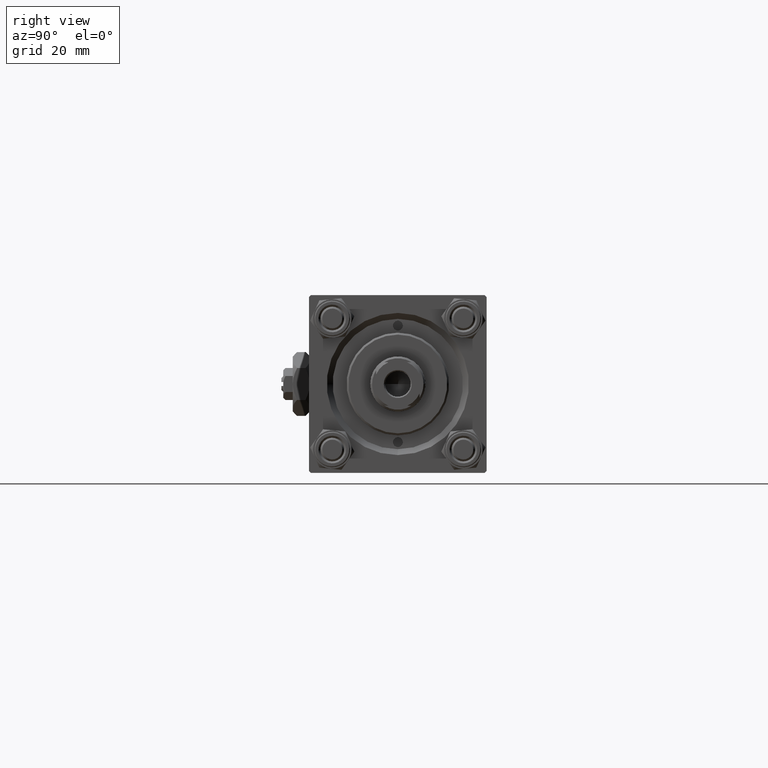
[diagram: clean part render]
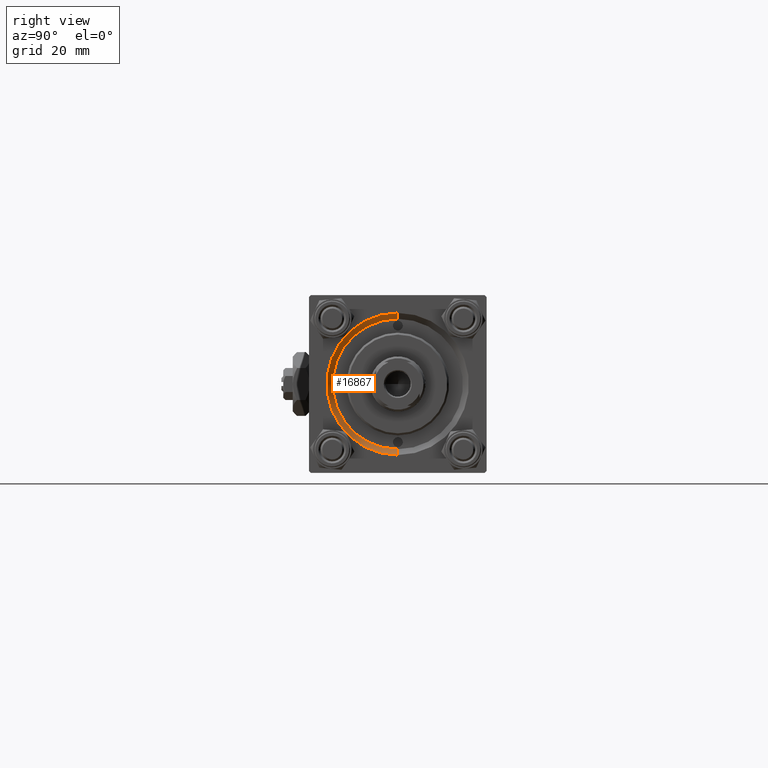
[diagram: same view with one face highlighted and labeled with its STEP entity id]
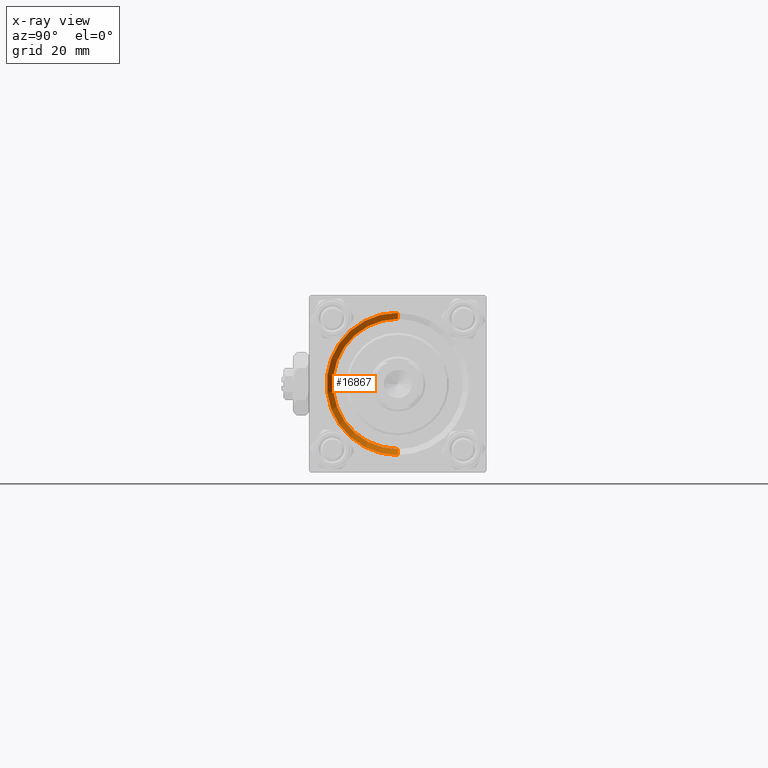
[diagram: x-ray of the same camera — body ghosted, the highlighted face saturated]
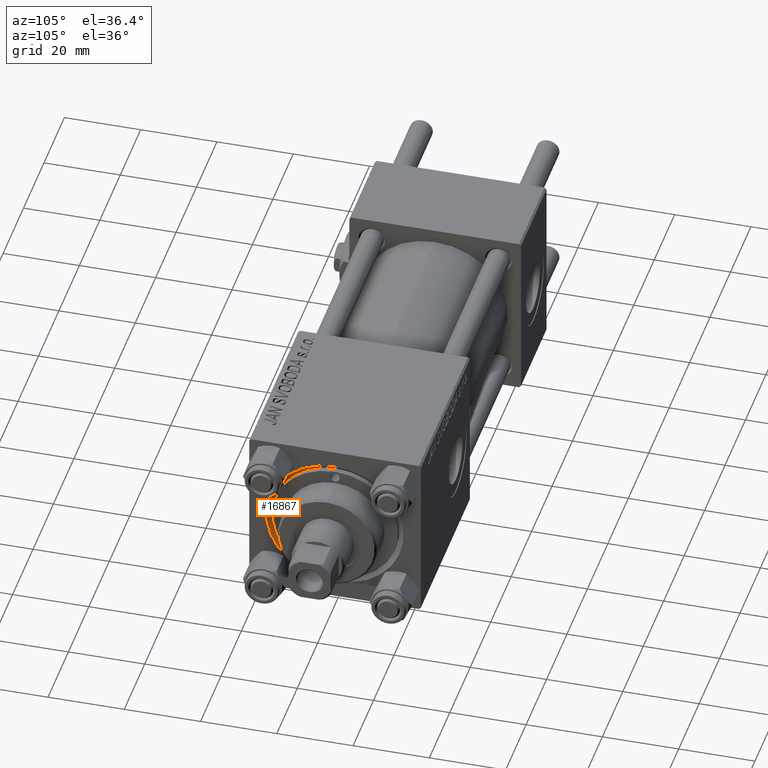
[diagram: same view with one face highlighted and labeled with its STEP entity id]
A machine part, right view. The second image highlights one B-rep face of the part: STEP entity #16867.
The next image is the same camera in x-ray: the body ghosted, the highlighted face saturated — about 0% of this face is hidden behind the body in this view.
A second angle (auxiliary view) of the same face is appended — the face is thin or edge-on in the first view.
In plain terms, the highlighted conical surface has half-angle 45 deg.
Its self-contained STEP definition (entity closure, byte-faithful):
#478 = CARTESIAN_POINT ( 'NONE',  ( 121.5000000000000142, 0.000000000000000000, -16.50000000000000000 ) ) ;
#1089 = CARTESIAN_POINT ( 'NONE',  ( 123.0000000000000142, 0.000000000000000000, -18.00000000000000355 ) ) ;
#1115 = AXIS2_PLACEMENT_3D ( 'NONE', #19293, #35241, #50910 ) ;
#3621 = CONICAL_SURFACE ( 'NONE', #1115, 16.50000000000000000, 0.7853981633974482790 ) ;
#3623 = DIRECTION ( 'NONE',  ( 0.7071067811865474617, 0.000000000000000000, -0.7071067811865474617 ) ) ;
#3891 = LINE ( 'NONE', #478, #18771 ) ;
#4618 = CIRCLE ( 'NONE', #50471, 18.00000000000000355 ) ;
#5264 = EDGE_LOOP ( 'NONE', ( #43652, #47698, #39739, #34198 ) ) ;
#5889 = DIRECTION ( 'NONE',  ( 1.000000000000000000, 0.000000000000000000, 0.000000000000000000 ) ) ;
#6685 = DIRECTION ( 'NONE',  ( 0.7071067811865474617, 8.659560562354932858E-17, 0.7071067811865474617 ) ) ;
#7616 = EDGE_CURVE ( 'NONE', #19810, #46005, #14512, .T. ) ;
#7908 = VERTEX_POINT ( 'NONE', #1089 ) ;
#9837 = CARTESIAN_POINT ( 'NONE',  ( 121.5000000000000142, 0.000000000000000000, -16.50000000000000000 ) ) ;
#14512 = LINE ( 'NONE', #30474, #20983 ) ;
#16867 = ADVANCED_FACE ( 'NONE', ( #42563 ), #3621, .F. ) ;
#17910 = CIRCLE ( 'NONE', #21231, 16.50000000000000000 ) ;
#18771 = VECTOR ( 'NONE', #3623, 1000.000000000000114 ) ;
#19293 = CARTESIAN_POINT ( 'NONE',  ( 121.5000000000000142, 0.000000000000000000, 0.000000000000000000 ) ) ;
#19426 = EDGE_CURVE ( 'NONE', #19810, #26985, #17910, .T. ) ;
#19810 = VERTEX_POINT ( 'NONE', #30021 ) ;
#20983 = VECTOR ( 'NONE', #6685, 1000.000000000000114 ) ;
#21231 = AXIS2_PLACEMENT_3D ( 'NONE', #29431, #5889, #45345 ) ;
#23297 = CARTESIAN_POINT ( 'NONE',  ( 123.0000000000000142, 2.204364238465235822E-15, 18.00000000000000355 ) ) ;
#26985 = VERTEX_POINT ( 'NONE', #9837 ) ;
#27148 = CARTESIAN_POINT ( 'NONE',  ( 123.0000000000000142, 0.000000000000000000, 0.000000000000000000 ) ) ;
#29431 = CARTESIAN_POINT ( 'NONE',  ( 121.5000000000000142, 0.000000000000000000, 0.000000000000000000 ) ) ;
#30021 = CARTESIAN_POINT ( 'NONE',  ( 121.5000000000000142, 2.020667218593133100E-15, 16.50000000000000000 ) ) ;
#30474 = CARTESIAN_POINT ( 'NONE',  ( 121.5000000000000142, 2.020667218593133100E-15, 16.50000000000000000 ) ) ;
#34198 = ORIENTED_EDGE ( 'NONE', *, *, #34402, .F. ) ;
#34242 = EDGE_CURVE ( 'NONE', #7908, #46005, #4618, .T. ) ;
#34402 = EDGE_CURVE ( 'NONE', #26985, #7908, #3891, .T. ) ;
#35241 = DIRECTION ( 'NONE',  ( 1.000000000000000000, 0.000000000000000000, 0.000000000000000000 ) ) ;
#39739 = ORIENTED_EDGE ( 'NONE', *, *, #34242, .F. ) ;
#42563 = FACE_OUTER_BOUND ( 'NONE', #5264, .T. ) ;
#43652 = ORIENTED_EDGE ( 'NONE', *, *, #19426, .F. ) ;
#45345 = DIRECTION ( 'NONE',  ( 0.000000000000000000, 0.000000000000000000, 1.000000000000000000 ) ) ;
#46005 = VERTEX_POINT ( 'NONE', #23297 ) ;
#46746 = DIRECTION ( 'NONE',  ( 0.000000000000000000, 0.000000000000000000, 1.000000000000000000 ) ) ;
#47698 = ORIENTED_EDGE ( 'NONE', *, *, #7616, .T. ) ;
#50471 = AXIS2_PLACEMENT_3D ( 'NONE', #27148, #50666, #46746 ) ;
#50666 = DIRECTION ( 'NONE',  ( -1.000000000000000000, 0.000000000000000000, -0.000000000000000000 ) ) ;
#50910 = DIRECTION ( 'NONE',  ( 0.000000000000000000, 0.000000000000000000, -1.000000000000000000 ) ) ;